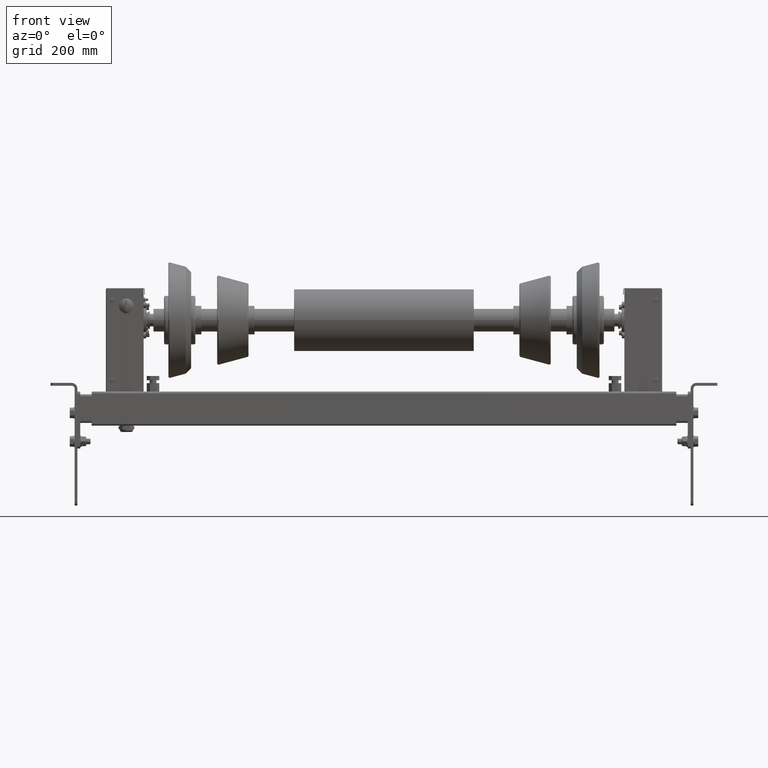
[diagram: clean part render]
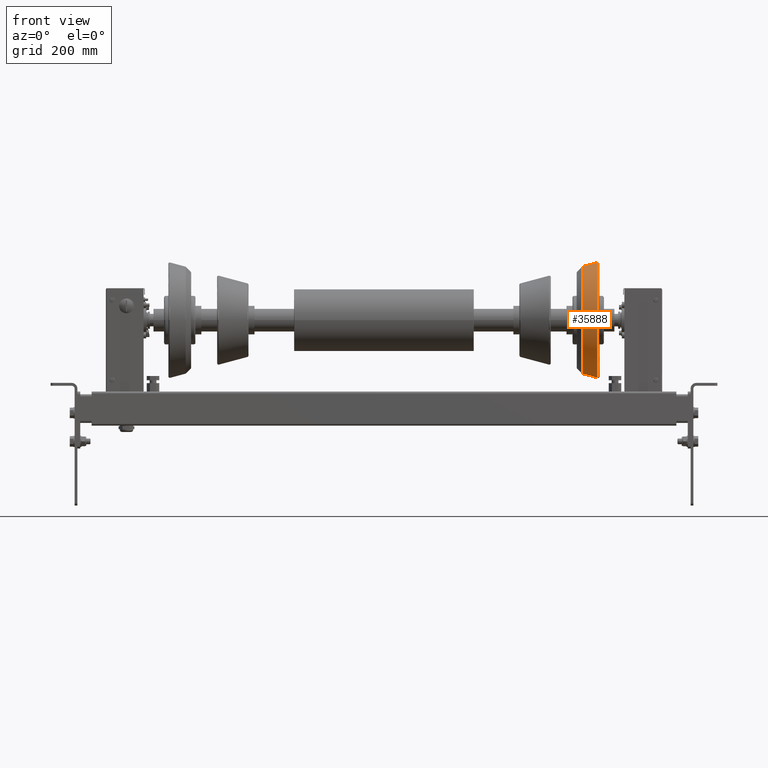
[diagram: same view with one face highlighted and labeled with its STEP entity id]
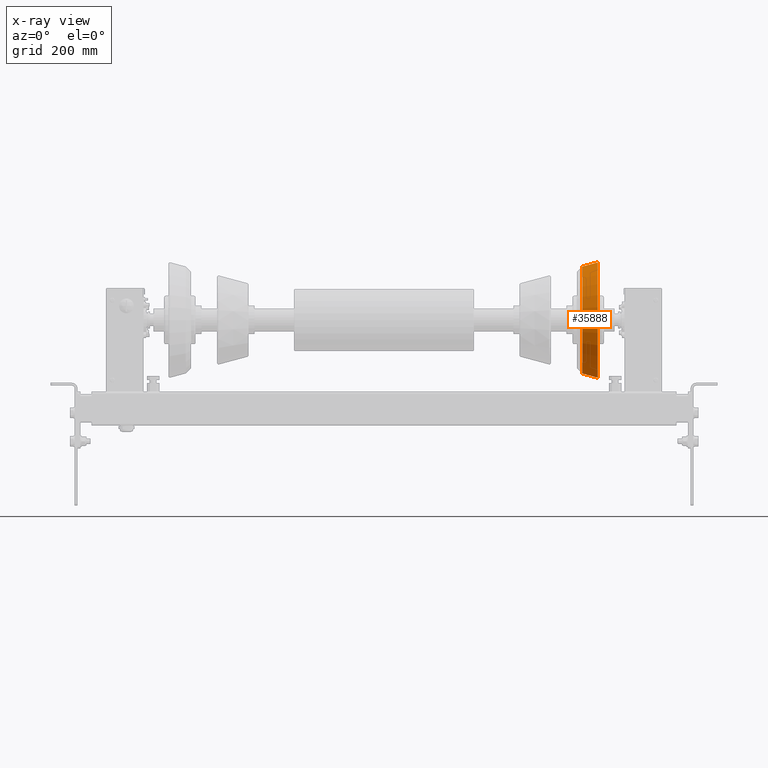
[diagram: x-ray of the same camera — body ghosted, the highlighted face saturated]
A machine part, front view. The second image highlights one B-rep face of the part: STEP entity #35888.
The next image is the same camera in x-ray: the body ghosted, the highlighted face saturated — about 0% of this face is hidden behind the body in this view.
In plain terms, the highlighted conical surface has half-angle 15 deg.
Its self-contained STEP definition (entity closure, byte-faithful):
#35449=CARTESIAN_POINT('',(16.852952387243676,-1.237588E-014,101.056751133619660));
#35450=VERTEX_POINT('',#35449);
#35458=CARTESIAN_POINT('',(16.852952387243683,-101.056751133619660,-1.237588E-014));
#35459=VERTEX_POINT('',#35458);
#35460=CARTESIAN_POINT('',(16.852952387243679,0.0,0.0));
#35461=DIRECTION('',(1.0,0.0,0.0));
#35462=DIRECTION('',(0.0,-1.0,0.0));
#35463=AXIS2_PLACEMENT_3D('',#35460,#35461,#35462);
#35464=CIRCLE('',#35463,101.056751133619660);
#35465=EDGE_CURVE('',#35450,#35459,#35464,.T.);
#35575=CARTESIAN_POINT('',(16.852952387243679,101.056751133619660,0.0));
#35576=VERTEX_POINT('',#35575);
#35577=CARTESIAN_POINT('',(-9.883620161826016,93.892708110720250,0.0));
#35578=VERTEX_POINT('',#35577);
#35579=CARTESIAN_POINT('',(16.852952387243679,101.056751133619660,0.0));
#35580=DIRECTION('',(-0.965925826289068,-0.258819045102523,0.0));
#35581=VECTOR('',#35580,27.679736705857966);
#35582=LINE('',#35579,#35581);
#35583=EDGE_CURVE('',#35576,#35578,#35582,.T.);
#35593=CARTESIAN_POINT('',(-9.883620161826018,-93.892708110720250,-1.149854E-014));
#35594=VERTEX_POINT('',#35593);
#35595=CARTESIAN_POINT('',(16.852952387243683,-101.056751133619660,-1.237588E-014));
#35596=DIRECTION('',(-0.965925826289068,0.258819045102523,3.169619E-017));
#35597=VECTOR('',#35596,27.679736705857970);
#35598=LINE('',#35595,#35597);
#35599=EDGE_CURVE('',#35459,#35594,#35598,.T.);
#35635=CARTESIAN_POINT('',(-9.883620161826016,-1.149854E-014,93.892708110720250));
#35636=VERTEX_POINT('',#35635);
#35637=CARTESIAN_POINT('',(-9.883620161826016,0.0,0.0));
#35638=DIRECTION('',(-1.0,0.0,0.0));
#35639=DIRECTION('',(0.0,-1.0,0.0));
#35640=AXIS2_PLACEMENT_3D('',#35637,#35638,#35639);
#35641=CIRCLE('',#35640,93.892708110720250);
#35642=EDGE_CURVE('',#35594,#35636,#35641,.T.);
#35858=CARTESIAN_POINT('',(-9.883620161826016,0.0,0.0));
#35859=DIRECTION('',(-1.0,0.0,0.0));
#35860=DIRECTION('',(0.0,-1.0,0.0));
#35861=AXIS2_PLACEMENT_3D('',#35858,#35859,#35860);
#35862=CIRCLE('',#35861,93.892708110720250);
#35863=EDGE_CURVE('',#35636,#35578,#35862,.T.);
#35869=CARTESIAN_POINT('',(4.734666112708879,0.0,0.0));
#35870=DIRECTION('',(1.0,0.0,0.0));
#35871=DIRECTION('',(0.0,1.0,0.0));
#35872=AXIS2_PLACEMENT_3D('',#35869,#35870,#35871);
#35873=CONICAL_SURFACE('',#35872,97.809666112708868,15.000000000000103);
#35874=ORIENTED_EDGE('',*,*,#35583,.T.);
#35875=ORIENTED_EDGE('',*,*,#35863,.F.);
#35876=ORIENTED_EDGE('',*,*,#35642,.F.);
#35877=ORIENTED_EDGE('',*,*,#35599,.F.);
#35878=ORIENTED_EDGE('',*,*,#35465,.F.);
#35879=CARTESIAN_POINT('',(16.852952387243679,0.0,0.0));
#35880=DIRECTION('',(1.0,0.0,0.0));
#35881=DIRECTION('',(0.0,-1.0,0.0));
#35882=AXIS2_PLACEMENT_3D('',#35879,#35880,#35881);
#35883=CIRCLE('',#35882,101.056751133619660);
#35884=EDGE_CURVE('',#35576,#35450,#35883,.T.);
#35885=ORIENTED_EDGE('',*,*,#35884,.F.);
#35886=EDGE_LOOP('',(#35874,#35875,#35876,#35877,#35878,#35885));
#35887=FACE_OUTER_BOUND('',#35886,.T.);
#35888=ADVANCED_FACE('',(#35887),#35873,.T.);